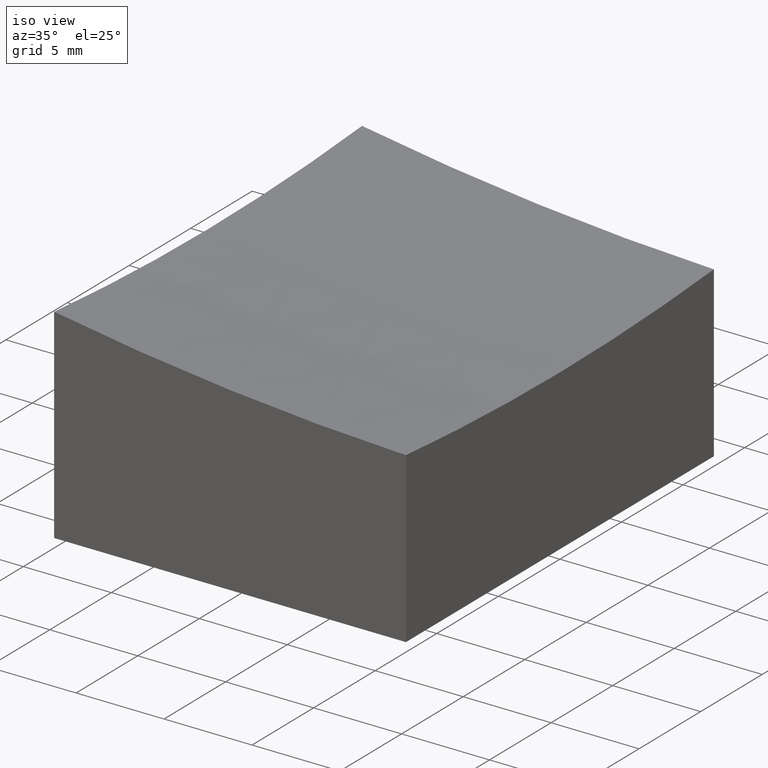
[diagram: clean part render]
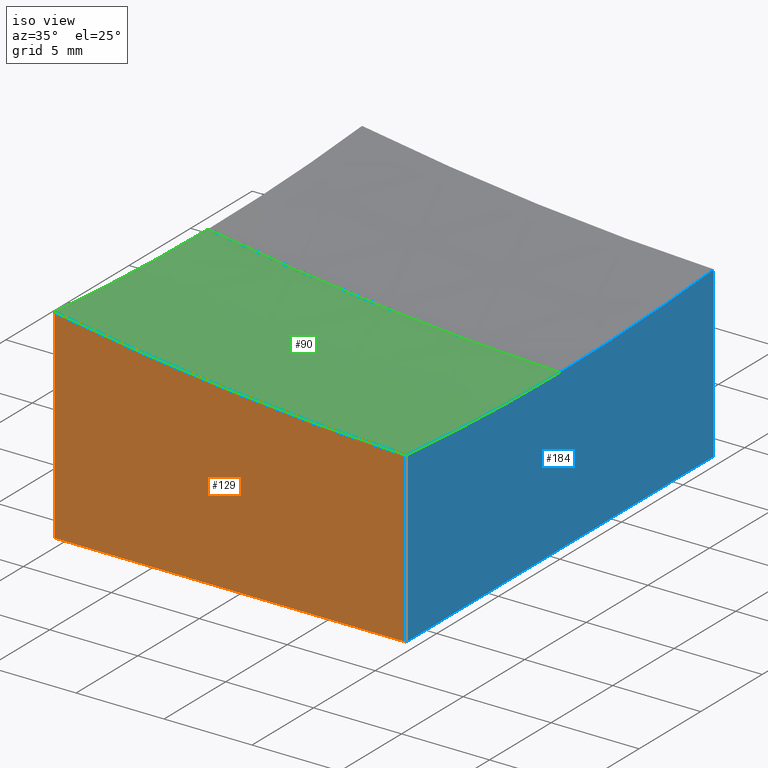
[diagram: same view with three faces highlighted in distinct colors, each labeled with its STEP entity id]
A machine part, iso view with three faces highlighted in distinct colors.
Their STEP definitions:

[orange] entity #129 — the highlighted planar face has unit normal (-0, 1, 0).
#6 = DIRECTION ( 'NONE',  ( -1.000000000000000000, -1.734723475976807094E-16, 0.000000000000000000 ) ) ;
#14 = VERTEX_POINT ( 'NONE', #156 ) ;
#17 = ORIENTED_EDGE ( 'NONE', *, *, #81, .T. ) ;
#25 = VECTOR ( 'NONE', #56, 1000.000000000000000 ) ;
#29 = CARTESIAN_POINT ( 'NONE',  ( 10.00000000000000178, -12.50000000000000000, -10.00000000000000000 ) ) ;
#31 = CARTESIAN_POINT ( 'NONE',  ( -9.999999999999998224, -12.50000000000000355, 10.00000000000000000 ) ) ;
#32 = EDGE_CURVE ( 'NONE', #37, #124, #197, .T. ) ;
#35 = CIRCLE ( 'NONE', #143, 149.4782592887674753 ) ;
#37 = VERTEX_POINT ( 'NONE', #116 ) ;
#50 = DIRECTION ( 'NONE',  ( -0.000000000000000000, -0.000000000000000000, -1.000000000000000000 ) ) ;
#56 = DIRECTION ( 'NONE',  ( -0.000000000000000000, -0.000000000000000000, -1.000000000000000000 ) ) ;
#70 = CARTESIAN_POINT ( 'NONE',  ( 15.00000000000002132, -12.49999999999999822, 149.0000000000000000 ) ) ;
#71 = PLANE ( 'NONE',  #85 ) ;
#79 = ORIENTED_EDGE ( 'NONE', *, *, #263, .F. ) ;
#81 = EDGE_CURVE ( 'NONE', #211, #37, #35, .T. ) ;
#85 = AXIS2_PLACEMENT_3D ( 'NONE', #97, #95, #6 ) ;
#94 = CARTESIAN_POINT ( 'NONE',  ( 10.00000000000000178, -12.50000000000000000, 10.00000000000000000 ) ) ;
#95 = DIRECTION ( 'NONE',  ( -1.734723475976807094E-16, 1.000000000000000000, 0.000000000000000000 ) ) ;
#97 = CARTESIAN_POINT ( 'NONE',  ( 10.00000000000000178, -12.50000000000000000, 10.00000000000000000 ) ) ;
#99 = ORIENTED_EDGE ( 'NONE', *, *, #32, .T. ) ;
#108 = EDGE_CURVE ( 'NONE', #124, #14, #132, .T. ) ;
#112 = FACE_OUTER_BOUND ( 'NONE', #167, .T. ) ;
#116 = CARTESIAN_POINT ( 'NONE',  ( -10.00000000000000000, -12.50000000000000355, 1.627173468105036491 ) ) ;
#124 = VERTEX_POINT ( 'NONE', #243 ) ;
#129 = ADVANCED_FACE ( 'NONE', ( #112 ), #71, .F. ) ;
#130 = DIRECTION ( 'NONE',  ( 1.000000000000000000, 1.734723475976807094E-16, -0.000000000000000000 ) ) ;
#132 = LINE ( 'NONE', #29, #255 ) ;
#133 = LINE ( 'NONE', #94, #25 ) ;
#142 = ORIENTED_EDGE ( 'NONE', *, *, #108, .T. ) ;
#143 = AXIS2_PLACEMENT_3D ( 'NONE', #70, #154, #176 ) ;
#154 = DIRECTION ( 'NONE',  ( -1.734723475976807094E-16, 1.000000000000000000, 0.000000000000000000 ) ) ;
#156 = CARTESIAN_POINT ( 'NONE',  ( 10.00000000000000178, -12.50000000000000000, -10.00000000000000000 ) ) ;
#157 = CARTESIAN_POINT ( 'NONE',  ( 10.00000000000000178, -12.50000000000000000, -0.3946116832866386481 ) ) ;
#167 = EDGE_LOOP ( 'NONE', ( #79, #17, #99, #142 ) ) ;
#176 = DIRECTION ( 'NONE',  ( -1.000000000000000000, -1.740778375628798863E-16, 0.000000000000000000 ) ) ;
#197 = LINE ( 'NONE', #31, #275 ) ;
#211 = VERTEX_POINT ( 'NONE', #157 ) ;
#243 = CARTESIAN_POINT ( 'NONE',  ( -9.999999999999998224, -12.50000000000000355, -10.00000000000000000 ) ) ;
#255 = VECTOR ( 'NONE', #130, 1000.000000000000000 ) ;
#263 = EDGE_CURVE ( 'NONE', #211, #14, #133, .T. ) ;
#275 = VECTOR ( 'NONE', #50, 1000.000000000000000 ) ;

[blue] entity #184 — the highlighted planar face has unit normal (-1, 0, 0).
#10 = AXIS2_PLACEMENT_3D ( 'NONE', #277, #53, #218 ) ;
#14 = VERTEX_POINT ( 'NONE', #156 ) ;
#25 = VECTOR ( 'NONE', #56, 1000.000000000000000 ) ;
#36 = ORIENTED_EDGE ( 'NONE', *, *, #145, .T. ) ;
#47 = CARTESIAN_POINT ( 'NONE',  ( 10.00000000000000178, 12.50000000000000000, 10.00000000000000000 ) ) ;
#53 = DIRECTION ( 'NONE',  ( -1.000000000000000000, 0.000000000000000000, 0.000000000000000000 ) ) ;
#56 = DIRECTION ( 'NONE',  ( -0.000000000000000000, -0.000000000000000000, -1.000000000000000000 ) ) ;
#57 = AXIS2_PLACEMENT_3D ( 'NONE', #111, #160, #246 ) ;
#63 = EDGE_CURVE ( 'NONE', #251, #266, #180, .T. ) ;
#92 = LINE ( 'NONE', #257, #204 ) ;
#94 = CARTESIAN_POINT ( 'NONE',  ( 10.00000000000000178, -12.50000000000000000, 10.00000000000000000 ) ) ;
#102 = ORIENTED_EDGE ( 'NONE', *, *, #214, .T. ) ;
#111 = CARTESIAN_POINT ( 'NONE',  ( 10.00000000000000178, 0.000000000000000000, 149.0000000000000000 ) ) ;
#113 = FACE_OUTER_BOUND ( 'NONE', #228, .T. ) ;
#133 = LINE ( 'NONE', #94, #25 ) ;
#136 = DIRECTION ( 'NONE',  ( 0.000000000000000000, 1.000000000000000000, 0.000000000000000000 ) ) ;
#139 = AXIS2_PLACEMENT_3D ( 'NONE', #179, #261, #158 ) ;
#145 = EDGE_CURVE ( 'NONE', #189, #211, #152, .T. ) ;
#148 = ORIENTED_EDGE ( 'NONE', *, *, #63, .F. ) ;
#152 = CIRCLE ( 'NONE', #139, 149.9166435056495175 ) ;
#156 = CARTESIAN_POINT ( 'NONE',  ( 10.00000000000000178, -12.50000000000000000, -10.00000000000000000 ) ) ;
#157 = CARTESIAN_POINT ( 'NONE',  ( 10.00000000000000178, -12.50000000000000000, -0.3946116832866386481 ) ) ;
#158 = DIRECTION ( 'NONE',  ( 0.000000000000000000, 0.000000000000000000, 1.000000000000000000 ) ) ;
#159 = ORIENTED_EDGE ( 'NONE', *, *, #181, .T. ) ;
#160 = DIRECTION ( 'NONE',  ( -1.000000000000000000, 0.000000000000000000, 0.000000000000000000 ) ) ;
#162 = CIRCLE ( 'NONE', #57, 149.9166435056495175 ) ;
#179 = CARTESIAN_POINT ( 'NONE',  ( 10.00000000000000178, 0.000000000000000000, 149.0000000000000000 ) ) ;
#180 = LINE ( 'NONE', #47, #260 ) ;
#181 = EDGE_CURVE ( 'NONE', #251, #189, #162, .T. ) ;
#184 = ADVANCED_FACE ( 'NONE', ( #113 ), #239, .F. ) ;
#189 = VERTEX_POINT ( 'NONE', #220 ) ;
#204 = VECTOR ( 'NONE', #136, 1000.000000000000000 ) ;
#211 = VERTEX_POINT ( 'NONE', #157 ) ;
#214 = EDGE_CURVE ( 'NONE', #14, #266, #92, .T. ) ;
#215 = DIRECTION ( 'NONE',  ( -0.000000000000000000, -0.000000000000000000, -1.000000000000000000 ) ) ;
#218 = DIRECTION ( 'NONE',  ( 0.000000000000000000, 0.000000000000000000, 1.000000000000000000 ) ) ;
#220 = CARTESIAN_POINT ( 'NONE',  ( 10.00000000000000178, 0.000000000000000000, -0.9166435056495170208 ) ) ;
#222 = CARTESIAN_POINT ( 'NONE',  ( 10.00000000000000178, 12.50000000000000000, -10.00000000000000000 ) ) ;
#226 = ORIENTED_EDGE ( 'NONE', *, *, #263, .T. ) ;
#228 = EDGE_LOOP ( 'NONE', ( #148, #159, #36, #226, #102 ) ) ;
#239 = PLANE ( 'NONE',  #10 ) ;
#244 = CARTESIAN_POINT ( 'NONE',  ( 10.00000000000000178, 12.50000000000000000, -0.3946116832866386481 ) ) ;
#246 = DIRECTION ( 'NONE',  ( 0.000000000000000000, 0.000000000000000000, 1.000000000000000000 ) ) ;
#251 = VERTEX_POINT ( 'NONE', #244 ) ;
#257 = CARTESIAN_POINT ( 'NONE',  ( 10.00000000000000178, -12.50000000000000000, -10.00000000000000000 ) ) ;
#260 = VECTOR ( 'NONE', #215, 1000.000000000000000 ) ;
#261 = DIRECTION ( 'NONE',  ( -1.000000000000000000, 0.000000000000000000, 0.000000000000000000 ) ) ;
#263 = EDGE_CURVE ( 'NONE', #211, #14, #133, .T. ) ;
#266 = VERTEX_POINT ( 'NONE', #222 ) ;
#277 = CARTESIAN_POINT ( 'NONE',  ( 10.00000000000000178, -12.50000000000000000, 10.00000000000000000 ) ) ;

[green] entity #90 — the highlighted spherical surface has radius 150 mm.
#5 = AXIS2_PLACEMENT_3D ( 'NONE', #258, #201, #46 ) ;
#19 = ORIENTED_EDGE ( 'NONE', *, *, #81, .F. ) ;
#22 = AXIS2_PLACEMENT_3D ( 'NONE', #223, #48, #75 ) ;
#35 = CIRCLE ( 'NONE', #143, 149.4782592887674753 ) ;
#37 = VERTEX_POINT ( 'NONE', #116 ) ;
#46 = DIRECTION ( 'NONE',  ( -1.000000000000000000, 0.000000000000000000, 0.000000000000000000 ) ) ;
#48 = DIRECTION ( 'NONE',  ( 0.000000000000000000, -1.000000000000000000, 0.000000000000000000 ) ) ;
#55 = SPHERICAL_SURFACE ( 'NONE', #5, 150.0000000000000284 ) ;
#59 = AXIS2_PLACEMENT_3D ( 'NONE', #177, #199, #98 ) ;
#60 = ORIENTED_EDGE ( 'NONE', *, *, #264, .F. ) ;
#70 = CARTESIAN_POINT ( 'NONE',  ( 15.00000000000002132, -12.49999999999999822, 149.0000000000000000 ) ) ;
#75 = DIRECTION ( 'NONE',  ( 0.000000000000000000, 0.000000000000000000, -1.000000000000000000 ) ) ;
#81 = EDGE_CURVE ( 'NONE', #211, #37, #35, .T. ) ;
#90 = ADVANCED_FACE ( 'NONE', ( #153 ), #55, .F. ) ;
#98 = DIRECTION ( 'NONE',  ( 0.000000000000000000, 0.000000000000000000, -1.000000000000000000 ) ) ;
#101 = VERTEX_POINT ( 'NONE', #219 ) ;
#116 = CARTESIAN_POINT ( 'NONE',  ( -10.00000000000000000, -12.50000000000000355, 1.627173468105036491 ) ) ;
#117 = CIRCLE ( 'NONE', #22, 150.0000000000000284 ) ;
#126 = ORIENTED_EDGE ( 'NONE', *, *, #173, .F. ) ;
#139 = AXIS2_PLACEMENT_3D ( 'NONE', #179, #261, #158 ) ;
#143 = AXIS2_PLACEMENT_3D ( 'NONE', #70, #154, #176 ) ;
#144 = EDGE_LOOP ( 'NONE', ( #126, #60, #19, #146 ) ) ;
#145 = EDGE_CURVE ( 'NONE', #189, #211, #152, .T. ) ;
#146 = ORIENTED_EDGE ( 'NONE', *, *, #145, .F. ) ;
#152 = CIRCLE ( 'NONE', #139, 149.9166435056495175 ) ;
#153 = FACE_OUTER_BOUND ( 'NONE', #144, .T. ) ;
#154 = DIRECTION ( 'NONE',  ( -1.734723475976807094E-16, 1.000000000000000000, 0.000000000000000000 ) ) ;
#157 = CARTESIAN_POINT ( 'NONE',  ( 10.00000000000000178, -12.50000000000000000, -0.3946116832866386481 ) ) ;
#158 = DIRECTION ( 'NONE',  ( 0.000000000000000000, 0.000000000000000000, 1.000000000000000000 ) ) ;
#164 = CIRCLE ( 'NONE', #59, 147.9019945774904272 ) ;
#173 = EDGE_CURVE ( 'NONE', #101, #189, #117, .T. ) ;
#176 = DIRECTION ( 'NONE',  ( -1.000000000000000000, -1.740778375628798863E-16, 0.000000000000000000 ) ) ;
#177 = CARTESIAN_POINT ( 'NONE',  ( -9.999999999999998224, 0.000000000000000000, 149.0000000000000000 ) ) ;
#179 = CARTESIAN_POINT ( 'NONE',  ( 10.00000000000000178, 0.000000000000000000, 149.0000000000000000 ) ) ;
#189 = VERTEX_POINT ( 'NONE', #220 ) ;
#199 = DIRECTION ( 'NONE',  ( 1.000000000000000000, 0.000000000000000000, 0.000000000000000000 ) ) ;
#201 = DIRECTION ( 'NONE',  ( 0.000000000000000000, 1.000000000000000000, -0.000000000000000000 ) ) ;
#211 = VERTEX_POINT ( 'NONE', #157 ) ;
#219 = CARTESIAN_POINT ( 'NONE',  ( -9.999999999999998224, 0.000000000000000000, 1.098005422509568119 ) ) ;
#220 = CARTESIAN_POINT ( 'NONE',  ( 10.00000000000000178, 0.000000000000000000, -0.9166435056495170208 ) ) ;
#223 = CARTESIAN_POINT ( 'NONE',  ( 15.00000000000001954, 0.000000000000000000, 149.0000000000000000 ) ) ;
#258 = CARTESIAN_POINT ( 'NONE',  ( 15.00000000000001954, 0.000000000000000000, 149.0000000000000000 ) ) ;
#261 = DIRECTION ( 'NONE',  ( -1.000000000000000000, 0.000000000000000000, 0.000000000000000000 ) ) ;
#264 = EDGE_CURVE ( 'NONE', #37, #101, #164, .T. ) ;